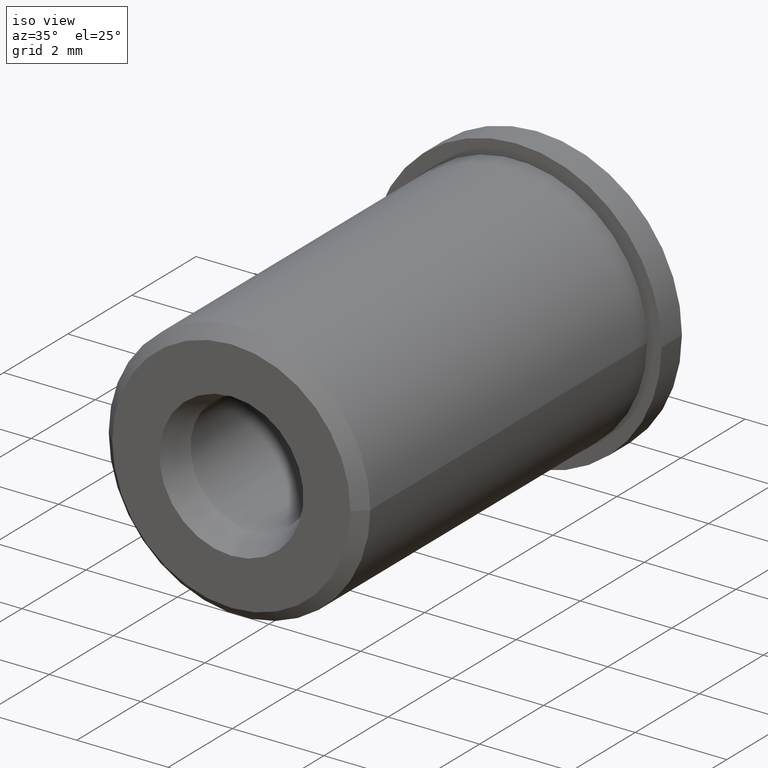
[diagram: clean part render]
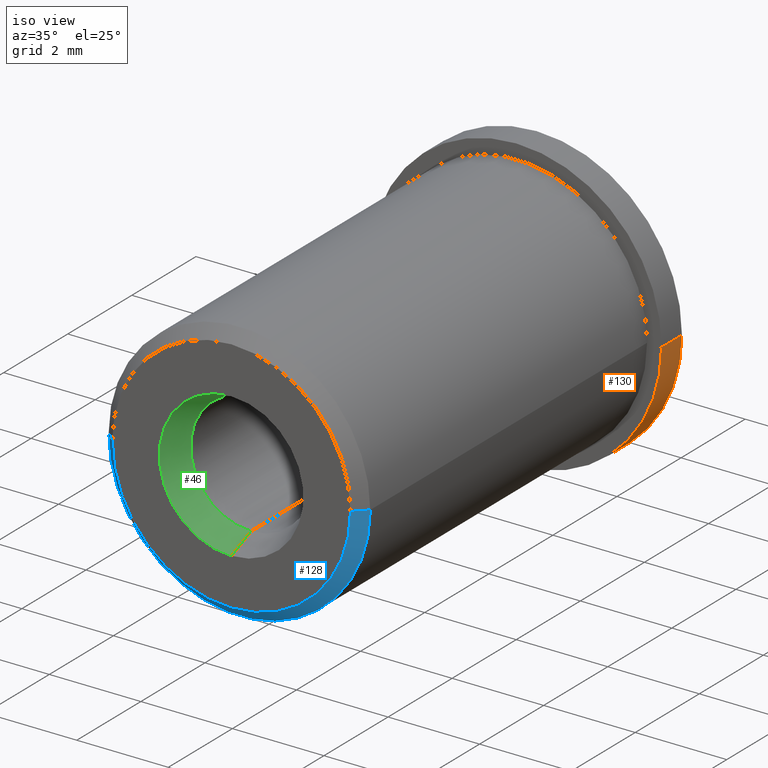
[diagram: same view with three faces highlighted in distinct colors, each labeled with its STEP entity id]
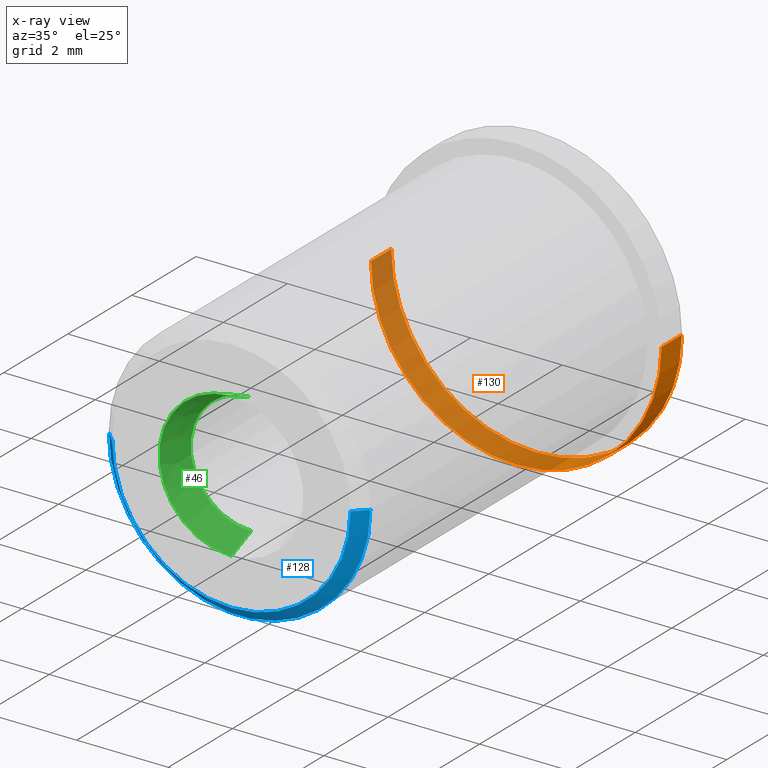
[diagram: x-ray of the same camera — body ghosted, the three highlighted faces saturated]
A machine part, iso view with three faces highlighted in distinct colors.
The next image is the same camera in x-ray (body ghosted, the three faces saturated) — at least one of them is partly hidden behind the body in this view.
Their STEP definitions:

[orange] entity #130 — the highlighted cylindrical surface (partial cylindrical patch) has radius 3.175 mm, axis along (0, -1, 0).
#63 = VERTEX_POINT ( 'NONE', #313 ) ;
#66 = VERTEX_POINT ( 'NONE', #307 ) ;
#68 = EDGE_CURVE ( 'NONE', #89, #66, #306, .T. ) ;
#77 = EDGE_CURVE ( 'NONE', #90, #89, #290, .T. ) ;
#78 = EDGE_LOOP ( 'NONE', ( #131, #132, #133, #134 ) ) ;
#89 = VERTEX_POINT ( 'NONE', #330 ) ;
#90 = VERTEX_POINT ( 'NONE', #329 ) ;
#92 = EDGE_CURVE ( 'NONE', #90, #63, #328, .T. ) ;
#130 = ADVANCED_FACE ( 'NONE', ( #439 ), #434, .T. ) ;
#131 = ORIENTED_EDGE ( 'NONE', *, *, #92, .F. ) ;
#132 = ORIENTED_EDGE ( 'NONE', *, *, #77, .T. ) ;
#133 = ORIENTED_EDGE ( 'NONE', *, *, #68, .T. ) ;
#134 = ORIENTED_EDGE ( 'NONE', *, *, #135, .F. ) ;
#135 = EDGE_CURVE ( 'NONE', #63, #66, #428, .T. ) ;
#286 = DIRECTION ( 'NONE',  ( 1.000000000000000000, 3.551402391763541600E-015, 0.0000000000000000000 ) ) ;
#287 = DIRECTION ( 'NONE',  ( 3.483106191921942700E-015, -1.000000000000000000, 0.0000000000000000000 ) ) ;
#288 = CARTESIAN_POINT ( 'NONE',  ( 1.229331597148917000E-015, 0.2500000000000010500, 0.0000000000000000000 ) ) ;
#289 = AXIS2_PLACEMENT_3D ( 'NONE', #288, #287, #286 ) ;
#290 = CIRCLE ( 'NONE', #289, 0.1250000000000000300 ) ;
#303 = DIRECTION ( 'NONE',  ( 3.483106191921942300E-015, -1.000000000000000000, 0.0000000000000000000 ) ) ;
#304 = VECTOR ( 'NONE', #303, 39.37007874015748100 ) ;
#305 = CARTESIAN_POINT ( 'NONE',  ( 0.1250000000000021600, 1.528069109769730900E-015, 0.0000000000000000000 ) ) ;
#306 = LINE ( 'NONE', #305, #304 ) ;
#307 = CARTESIAN_POINT ( 'NONE',  ( 0.1250000000000014400, 0.2250000000000027300, 0.0000000000000000000 ) ) ;
#313 = CARTESIAN_POINT ( 'NONE',  ( -0.1249999999999988100, 0.2250000000000018400, 1.530757942277972800E-017 ) ) ;
#325 = DIRECTION ( 'NONE',  ( 3.483106191921942300E-015, -1.000000000000000000, 0.0000000000000000000 ) ) ;
#326 = VECTOR ( 'NONE', #325, 39.37007874015748100 ) ;
#327 = CARTESIAN_POINT ( 'NONE',  ( -0.1249999999999979600, 6.572925617892448100E-016, 1.530757942277972200E-017 ) ) ;
#328 = LINE ( 'NONE', #327, #326 ) ;
#329 = CARTESIAN_POINT ( 'NONE',  ( -0.1249999999999988100, 0.2500000000000006100, 1.530757942277972800E-017 ) ) ;
#330 = CARTESIAN_POINT ( 'NONE',  ( 0.1250000000000012500, 0.2500000000000015000, 0.0000000000000000000 ) ) ;
#425 = DIRECTION ( 'NONE',  ( 1.000000000000000000, 3.551402391763539200E-015, 0.0000000000000000000 ) ) ;
#426 = DIRECTION ( 'NONE',  ( 3.483106191921942700E-015, -1.000000000000000000, 0.0000000000000000000 ) ) ;
#427 = AXIS2_PLACEMENT_3D ( 'NONE', #433, #426, #425 ) ;
#428 = CIRCLE ( 'NONE', #427, 0.1250000000000001100 ) ;
#429 = DIRECTION ( 'NONE',  ( 1.000000000000000000, 3.483106191921942700E-015, 0.0000000000000000000 ) ) ;
#430 = DIRECTION ( 'NONE',  ( 3.483106191921942700E-015, -1.000000000000000000, 0.0000000000000000000 ) ) ;
#431 = CARTESIAN_POINT ( 'NONE',  ( 2.100108145129402400E-015, 1.092680835779487700E-015, 0.0000000000000000000 ) ) ;
#432 = AXIS2_PLACEMENT_3D ( 'NONE', #431, #430, #429 ) ;
#433 = CARTESIAN_POINT ( 'NONE',  ( 1.316409251946961100E-015, 0.2250000000000022800, 0.0000000000000000000 ) ) ;
#434 = CYLINDRICAL_SURFACE ( 'NONE', #432, 0.1250000000000000600 ) ;
#439 = FACE_OUTER_BOUND ( 'NONE', #78, .T. ) ;

[blue] entity #128 — the highlighted conical surface has half-angle 45 deg.
#22 = EDGE_CURVE ( 'NONE', #93, #99, #216, .T. ) ;
#43 = VERTEX_POINT ( 'NONE', #235 ) ;
#93 = VERTEX_POINT ( 'NONE', #324 ) ;
#95 = EDGE_CURVE ( 'NONE', #43, #96, #323, .T. ) ;
#96 = VERTEX_POINT ( 'NONE', #319 ) ;
#99 = VERTEX_POINT ( 'NONE', #373 ) ;
#106 = ORIENTED_EDGE ( 'NONE', *, *, #95, .F. ) ;
#107 = ORIENTED_EDGE ( 'NONE', *, *, #108, .F. ) ;
#108 = EDGE_CURVE ( 'NONE', #93, #43, #403, .T. ) ;
#109 = ORIENTED_EDGE ( 'NONE', *, *, #22, .T. ) ;
#110 = ORIENTED_EDGE ( 'NONE', *, *, #127, .T. ) ;
#127 = EDGE_CURVE ( 'NONE', #99, #96, #379, .T. ) ;
#128 = ADVANCED_FACE ( 'NONE', ( #441 ), #440, .T. ) ;
#129 = EDGE_LOOP ( 'NONE', ( #106, #107, #109, #110 ) ) ;
#213 = DIRECTION ( 'NONE',  ( -0.7071067811865077200, 0.7071067811865873200, 0.0000000000000000000 ) ) ;
#214 = VECTOR ( 'NONE', #213, 39.37007874015748100 ) ;
#215 = CARTESIAN_POINT ( 'NONE',  ( -0.1125000000000003800, -0.1149999999999989100, 0.0000000000000000000 ) ) ;
#216 = LINE ( 'NONE', #215, #214 ) ;
#235 = CARTESIAN_POINT ( 'NONE',  ( 0.1025000000000064200, -0.1249999999999983600, 1.316451830359096900E-017 ) ) ;
#319 = CARTESIAN_POINT ( 'NONE',  ( 0.1125000000000053600, -0.1149999999999981200, 0.0000000000000000000 ) ) ;
#320 = DIRECTION ( 'NONE',  ( 0.7071067811865028300, 0.7071067811865922000, 8.659274570718837700E-017 ) ) ;
#321 = VECTOR ( 'NONE', #320, 39.37007874015748100 ) ;
#322 = CARTESIAN_POINT ( 'NONE',  ( 0.1125000000000053600, -0.1149999999999981200, 1.377682148050209500E-017 ) ) ;
#323 = LINE ( 'NONE', #322, #321 ) ;
#324 = CARTESIAN_POINT ( 'NONE',  ( -0.1025000000000013300, -0.1249999999999990700, 0.0000000000000000000 ) ) ;
#373 = CARTESIAN_POINT ( 'NONE',  ( -0.1125000000000003800, -0.1149999999999989100, 1.377682148050203900E-017 ) ) ;
#378 = AXIS2_PLACEMENT_3D ( 'NONE', #384, #443, #442 ) ;
#379 = CIRCLE ( 'NONE', #378, 0.1125000000000028600 ) ;
#384 = CARTESIAN_POINT ( 'NONE',  ( 2.500665357200424700E-015, -0.1149999999999985200, 0.0000000000000000000 ) ) ;
#399 = DIRECTION ( 'NONE',  ( 1.000000000000000000, 3.498098040667521200E-015, 0.0000000000000000000 ) ) ;
#400 = DIRECTION ( 'NONE',  ( 3.483106191921942700E-015, -1.000000000000000000, 0.0000000000000000000 ) ) ;
#401 = CARTESIAN_POINT ( 'NONE',  ( 2.535496419119644400E-015, -0.1249999999999987200, 0.0000000000000000000 ) ) ;
#402 = AXIS2_PLACEMENT_3D ( 'NONE', #401, #400, #399 ) ;
#403 = CIRCLE ( 'NONE', #402, 0.1025000000000038900 ) ;
#435 = DIRECTION ( 'NONE',  ( -1.000000000000000000, -3.490694658570914100E-015, 0.0000000000000000000 ) ) ;
#436 = DIRECTION ( 'NONE',  ( -3.483106191921942700E-015, 1.000000000000000000, 0.0000000000000000000 ) ) ;
#437 = CARTESIAN_POINT ( 'NONE',  ( 2.500665357200424700E-015, -0.1149999999999985200, 0.0000000000000000000 ) ) ;
#438 = AXIS2_PLACEMENT_3D ( 'NONE', #437, #436, #435 ) ;
#440 = CONICAL_SURFACE ( 'NONE', #438, 0.1125000000000028600, 0.7853981633973885500 ) ;
#441 = FACE_OUTER_BOUND ( 'NONE', #129, .T. ) ;
#442 = DIRECTION ( 'NONE',  ( 1.000000000000000000, 3.490694658570914100E-015, 0.0000000000000000000 ) ) ;
#443 = DIRECTION ( 'NONE',  ( 3.483106191921942700E-015, -1.000000000000000000, 0.0000000000000000000 ) ) ;

[green] entity #46 — the highlighted conical surface has half-angle 22.5 deg.
#7 = FACE_OUTER_BOUND ( 'NONE', #45, .T. ) ;
#18 = EDGE_CURVE ( 'NONE', #49, #56, #167, .T. ) ;
#45 = EDGE_LOOP ( 'NONE', ( #47, #51, #54, #59 ) ) ;
#46 = ADVANCED_FACE ( 'NONE', ( #7 ), #283, .F. ) ;
#47 = ORIENTED_EDGE ( 'NONE', *, *, #48, .T. ) ;
#48 = EDGE_CURVE ( 'NONE', #49, #50, #278, .T. ) ;
#49 = VERTEX_POINT ( 'NONE', #274 ) ;
#50 = VERTEX_POINT ( 'NONE', #273 ) ;
#51 = ORIENTED_EDGE ( 'NONE', *, *, #52, .T. ) ;
#52 = EDGE_CURVE ( 'NONE', #50, #53, #272, .T. ) ;
#53 = VERTEX_POINT ( 'NONE', #268 ) ;
#54 = ORIENTED_EDGE ( 'NONE', *, *, #55, .F. ) ;
#55 = EDGE_CURVE ( 'NONE', #56, #53, #267, .T. ) ;
#56 = VERTEX_POINT ( 'NONE', #262 ) ;
#59 = ORIENTED_EDGE ( 'NONE', *, *, #18, .F. ) ;
#167 = LINE ( 'NONE', #219, #218 ) ;
#217 = DIRECTION ( 'NONE',  ( 0.0000000000000000000, -0.9238795325112865200, -0.3826834323650904500 ) ) ;
#218 = VECTOR ( 'NONE', #217, 39.37007874015748100 ) ;
#219 = CARTESIAN_POINT ( 'NONE',  ( -8.707765479804877300E-016, -0.1008578643762686300, -0.05199999999999992800 ) ) ;
#262 = CARTESIAN_POINT ( 'NONE',  ( -8.707765479804877300E-016, -0.1249999999999994900, -0.06199999999999990200 ) ) ;
#263 = DIRECTION ( 'NONE',  ( 0.0000000000000000000, 0.0000000000000000000, 1.000000000000000000 ) ) ;
#264 = DIRECTION ( 'NONE',  ( 0.0000000000000000000, 1.000000000000000000, 0.0000000000000000000 ) ) ;
#265 = CARTESIAN_POINT ( 'NONE',  ( -8.707765479804877300E-016, -0.1249999999999994900, 0.0000000000000000000 ) ) ;
#266 = AXIS2_PLACEMENT_3D ( 'NONE', #265, #264, #263 ) ;
#267 = CIRCLE ( 'NONE', #266, 0.06199999999999990200 ) ;
#268 = CARTESIAN_POINT ( 'NONE',  ( -8.631839885867890400E-016, -0.1249999999999994900, 0.06199999999999990200 ) ) ;
#269 = DIRECTION ( 'NONE',  ( 4.686365627768457400E-017, -0.9238795325112865200, 0.3826834323650904500 ) ) ;
#270 = VECTOR ( 'NONE', #269, 39.37007874015748100 ) ;
#271 = CARTESIAN_POINT ( 'NONE',  ( -8.644085949406113300E-016, -0.1008578643762686300, 0.05199999999999992800 ) ) ;
#272 = LINE ( 'NONE', #271, #270 ) ;
#273 = CARTESIAN_POINT ( 'NONE',  ( -8.707765479804877300E-016, -0.1008578643762686300, 0.05199999999999992800 ) ) ;
#274 = CARTESIAN_POINT ( 'NONE',  ( -8.644085949406113300E-016, -0.1008578643762686300, -0.05199999999999992800 ) ) ;
#275 = DIRECTION ( 'NONE',  ( 0.0000000000000000000, 0.0000000000000000000, 1.000000000000000000 ) ) ;
#276 = DIRECTION ( 'NONE',  ( 0.0000000000000000000, 1.000000000000000000, 0.0000000000000000000 ) ) ;
#277 = AXIS2_PLACEMENT_3D ( 'NONE', #284, #276, #275 ) ;
#278 = CIRCLE ( 'NONE', #277, 0.05199999999999992800 ) ;
#279 = DIRECTION ( 'NONE',  ( 0.0000000000000000000, 0.0000000000000000000, -1.000000000000000000 ) ) ;
#280 = DIRECTION ( 'NONE',  ( 0.0000000000000000000, -1.000000000000000000, 0.0000000000000000000 ) ) ;
#281 = CARTESIAN_POINT ( 'NONE',  ( -8.707765479804877300E-016, -0.1008578643762686300, 0.0000000000000000000 ) ) ;
#282 = AXIS2_PLACEMENT_3D ( 'NONE', #281, #280, #279 ) ;
#283 = CONICAL_SURFACE ( 'NONE', #282, 0.05199999999999992800, 0.3926990816987248600 ) ;
#284 = CARTESIAN_POINT ( 'NONE',  ( -8.707765479804877300E-016, -0.1008578643762686300, 0.0000000000000000000 ) ) ;